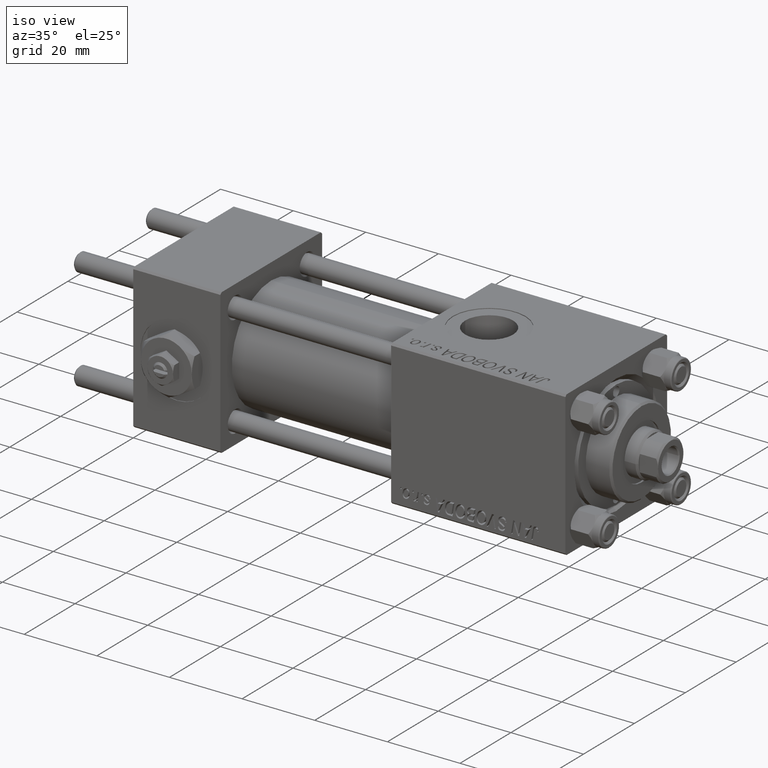
[diagram: clean part render]
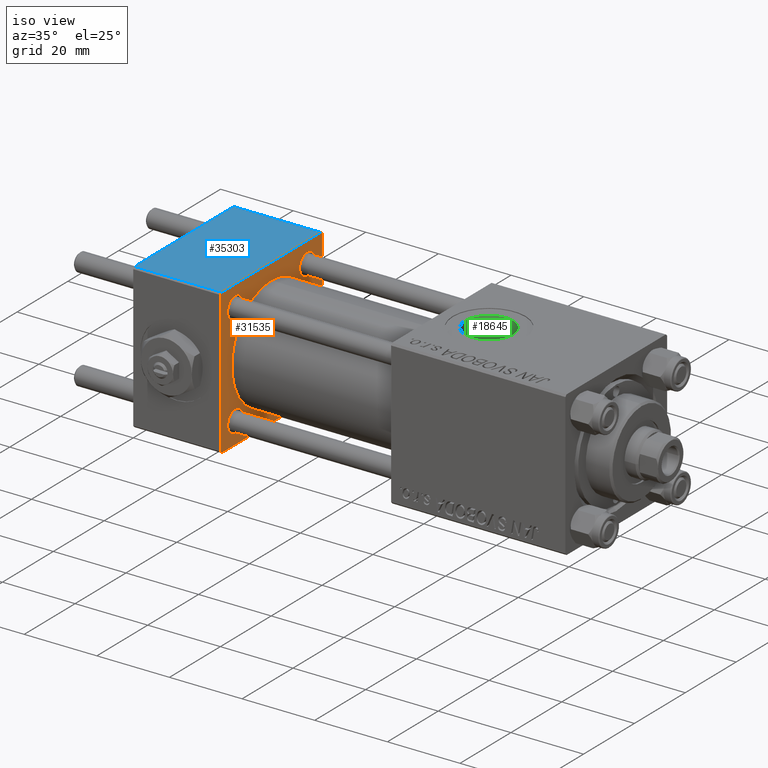
[diagram: same view with three faces highlighted in distinct colors, each labeled with its STEP entity id]
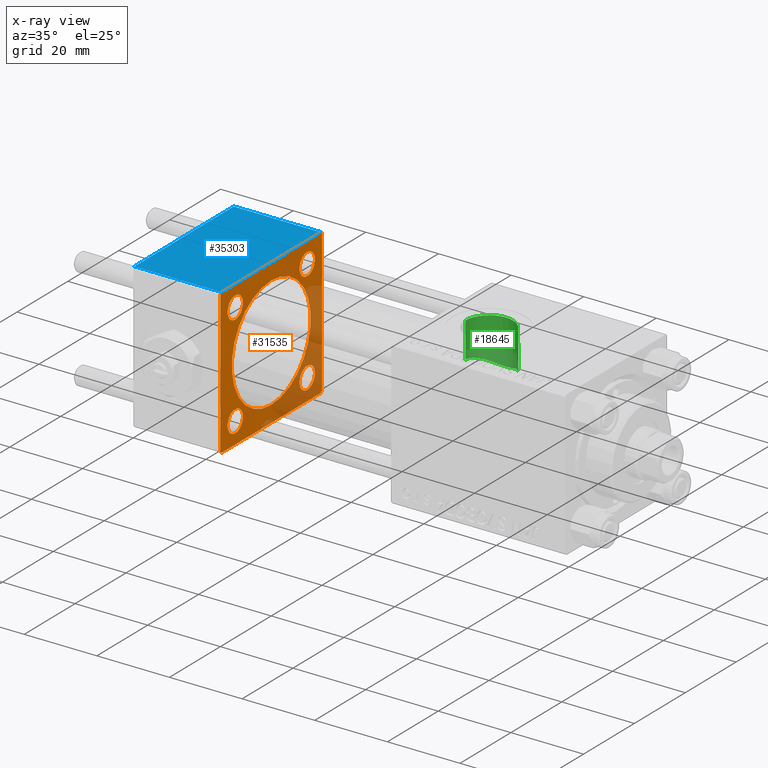
[diagram: x-ray of the same camera — body ghosted, the three highlighted faces saturated]
A machine part, iso view with three faces highlighted in distinct colors.
The next image is the same camera in x-ray (body ghosted, the three faces saturated) — at least one of them is partly hidden behind the body in this view.
Their STEP definitions:

[orange] entity #31535 — the highlighted planar face has unit normal (-1, 0, 0).
#672 = CIRCLE ( 'NONE', #29859, 2.999999999999976463 ) ;
#986 = CIRCLE ( 'NONE', #28476, 3.000000000000000888 ) ;
#1145 = ORIENTED_EDGE ( 'NONE', *, *, #37244, .F. ) ;
#1240 = DIRECTION ( 'NONE',  ( 0.000000000000000000, 0.000000000000000000, 1.000000000000000000 ) ) ;
#1499 = DIRECTION ( 'NONE',  ( -1.000000000000000000, -0.000000000000000000, -0.000000000000000000 ) ) ;
#1613 = CIRCLE ( 'NONE', #11568, 2.999999999999976463 ) ;
#1889 = DIRECTION ( 'NONE',  ( 0.000000000000000000, 0.000000000000000000, 1.000000000000000000 ) ) ;
#2499 = EDGE_CURVE ( 'NONE', #28625, #44655, #41868, .T. ) ;
#2757 = VERTEX_POINT ( 'NONE', #26898 ) ;
#3239 = FACE_BOUND ( 'NONE', #40485, .T. ) ;
#4129 = CARTESIAN_POINT ( 'NONE',  ( 24.00000000000000000, 14.14999999999999858, 11.15000000000002700 ) ) ;
#4434 = VERTEX_POINT ( 'NONE', #36444 ) ;
#4473 = CIRCLE ( 'NONE', #11127, 3.000000000000000888 ) ;
#4650 = CARTESIAN_POINT ( 'NONE',  ( 24.00000000000000000, 1.898202538678397557E-15, -15.50000000000000000 ) ) ;
#4819 = ORIENTED_EDGE ( 'NONE', *, *, #18932, .F. ) ;
#4896 = DIRECTION ( 'NONE',  ( 1.000000000000000000, 0.000000000000000000, 0.000000000000000000 ) ) ;
#4949 = EDGE_LOOP ( 'NONE', ( #46736, #4819 ) ) ;
#5687 = CARTESIAN_POINT ( 'NONE',  ( 24.00000000000000000, 14.14999999999999858, 14.15000000000000036 ) ) ;
#6001 = ORIENTED_EDGE ( 'NONE', *, *, #14616, .T. ) ;
#6092 = AXIS2_PLACEMENT_3D ( 'NONE', #45076, #4896, #9312 ) ;
#6113 = EDGE_LOOP ( 'NONE', ( #16189, #12818, #1145, #7943, #17245, #6001, #39445, #16332 ) ) ;
#6120 = DIRECTION ( 'NONE',  ( 0.000000000000000000, -1.000000000000000000, -2.602085213965210149E-16 ) ) ;
#6420 = CARTESIAN_POINT ( 'NONE',  ( 24.00000000000000000, -20.00000000000000355, 19.99999999999998934 ) ) ;
#6556 = DIRECTION ( 'NONE',  ( -1.000000000000000000, -0.000000000000000000, -0.000000000000000000 ) ) ;
#6845 = VERTEX_POINT ( 'NONE', #10902 ) ;
#7062 = DIRECTION ( 'NONE',  ( 0.000000000000000000, 0.000000000000000000, 1.000000000000000000 ) ) ;
#7354 = DIRECTION ( 'NONE',  ( 0.000000000000000000, 0.000000000000000000, 1.000000000000000000 ) ) ;
#7375 = ORIENTED_EDGE ( 'NONE', *, *, #46269, .T. ) ;
#7552 = CARTESIAN_POINT ( 'NONE',  ( 24.00000000000000000, 19.50000000000000711, -20.00000000000000711 ) ) ;
#7943 = ORIENTED_EDGE ( 'NONE', *, *, #28056, .T. ) ;
#8090 = DIRECTION ( 'NONE',  ( -0.000000000000000000, 0.7071067811865524577, 0.7071067811865426878 ) ) ;
#8266 = CIRCLE ( 'NONE', #19913, 15.50000000000000000 ) ;
#8667 = EDGE_CURVE ( 'NONE', #43431, #51454, #43840, .T. ) ;
#8809 = EDGE_LOOP ( 'NONE', ( #28927, #7375 ) ) ;
#9155 = VERTEX_POINT ( 'NONE', #4129 ) ;
#9312 = DIRECTION ( 'NONE',  ( 0.000000000000000000, 0.000000000000000000, 1.000000000000000000 ) ) ;
#9799 = VECTOR ( 'NONE', #29638, 999.9999999999998863 ) ;
#9868 = CARTESIAN_POINT ( 'NONE',  ( 24.00000000000000000, 14.14999999999999858, -11.15000000000002700 ) ) ;
#10816 = VERTEX_POINT ( 'NONE', #48826 ) ;
#10902 = CARTESIAN_POINT ( 'NONE',  ( 24.00000000000000000, -14.14999999999999503, 17.15000000000000568 ) ) ;
#11067 = PLANE ( 'NONE',  #24097 ) ;
#11127 = AXIS2_PLACEMENT_3D ( 'NONE', #34952, #46959, #15607 ) ;
#11568 = AXIS2_PLACEMENT_3D ( 'NONE', #50421, #6556, #7062 ) ;
#11773 = CARTESIAN_POINT ( 'NONE',  ( 24.00000000000000000, 19.50000000000000000, 20.00000000000000000 ) ) ;
#12718 = EDGE_CURVE ( 'NONE', #32553, #33952, #31215, .T. ) ;
#12818 = ORIENTED_EDGE ( 'NONE', *, *, #8667, .T. ) ;
#13293 = VECTOR ( 'NONE', #22948, 1000.000000000000000 ) ;
#13815 = LINE ( 'NONE', #25549, #20119 ) ;
#14336 = DIRECTION ( 'NONE',  ( -0.000000000000000000, -0.7071067811865500152, -0.7071067811865451302 ) ) ;
#14616 = EDGE_CURVE ( 'NONE', #44655, #32553, #13815, .T. ) ;
#15273 = ORIENTED_EDGE ( 'NONE', *, *, #26008, .T. ) ;
#15482 = FACE_BOUND ( 'NONE', #24099, .T. ) ;
#15607 = DIRECTION ( 'NONE',  ( 0.000000000000000000, 0.000000000000000000, 1.000000000000000000 ) ) ;
#15659 = CARTESIAN_POINT ( 'NONE',  ( 24.00000000000000000, 20.00000000000000000, -19.50000000000002132 ) ) ;
#15667 = EDGE_CURVE ( 'NONE', #27656, #4434, #986, .T. ) ;
#15962 = CIRCLE ( 'NONE', #48476, 2.999999999999976463 ) ;
#16189 = ORIENTED_EDGE ( 'NONE', *, *, #48507, .F. ) ;
#16332 = ORIENTED_EDGE ( 'NONE', *, *, #33082, .T. ) ;
#16928 = EDGE_LOOP ( 'NONE', ( #32771, #46448 ) ) ;
#17245 = ORIENTED_EDGE ( 'NONE', *, *, #2499, .T. ) ;
#18398 = DIRECTION ( 'NONE',  ( 0.000000000000000000, 0.000000000000000000, -1.000000000000000000 ) ) ;
#18427 = CARTESIAN_POINT ( 'NONE',  ( 24.00000000000000000, -19.49999999999999289, 19.99999999999998934 ) ) ;
#18652 = CARTESIAN_POINT ( 'NONE',  ( 24.00000000000000000, 20.00000000000000000, 19.49999999999999289 ) ) ;
#18734 = VERTEX_POINT ( 'NONE', #4650 ) ;
#18932 = EDGE_CURVE ( 'NONE', #18734, #2757, #24441, .T. ) ;
#19219 = DIRECTION ( 'NONE',  ( -1.000000000000000000, -0.000000000000000000, -0.000000000000000000 ) ) ;
#19913 = AXIS2_PLACEMENT_3D ( 'NONE', #27951, #43855, #40713 ) ;
#20119 = VECTOR ( 'NONE', #14336, 1000.000000000000114 ) ;
#20837 = CARTESIAN_POINT ( 'NONE',  ( 24.00000000000000000, 20.00000000000000000, -20.00000000000000711 ) ) ;
#21095 = LINE ( 'NONE', #20837, #42871 ) ;
#21281 = LINE ( 'NONE', #41892, #9799 ) ;
#21424 = CIRCLE ( 'NONE', #44741, 3.000000000000000888 ) ;
#21962 = CARTESIAN_POINT ( 'NONE',  ( 24.00000000000000000, 20.00000000000000000, -19.50000000000002132 ) ) ;
#22948 = DIRECTION ( 'NONE',  ( 0.000000000000000000, 0.7071067811865401342, -0.7071067811865549002 ) ) ;
#23574 = CARTESIAN_POINT ( 'NONE',  ( 24.00000000000000000, 0.000000000000000000, 0.000000000000000000 ) ) ;
#24097 = AXIS2_PLACEMENT_3D ( 'NONE', #23574, #38742, #35583 ) ;
#24099 = EDGE_LOOP ( 'NONE', ( #15273, #24317 ) ) ;
#24162 = CARTESIAN_POINT ( 'NONE',  ( 24.00000000000000000, -14.14999999999999503, -14.15000000000000391 ) ) ;
#24317 = ORIENTED_EDGE ( 'NONE', *, *, #15667, .T. ) ;
#24441 = CIRCLE ( 'NONE', #6092, 15.50000000000000000 ) ;
#24814 = VECTOR ( 'NONE', #6120, 1000.000000000000000 ) ;
#25036 = VERTEX_POINT ( 'NONE', #18652 ) ;
#25076 = CARTESIAN_POINT ( 'NONE',  ( 24.00000000000000000, -19.50000000000000711, -20.00000000000000000 ) ) ;
#25354 = DIRECTION ( 'NONE',  ( -1.000000000000000000, -0.000000000000000000, -0.000000000000000000 ) ) ;
#25533 = CARTESIAN_POINT ( 'NONE',  ( 24.00000000000000000, -20.00000000000000000, -19.49999999999999645 ) ) ;
#25549 = CARTESIAN_POINT ( 'NONE',  ( 24.00000000000000000, -20.00000000000000355, 19.49999999999998224 ) ) ;
#26008 = EDGE_CURVE ( 'NONE', #4434, #27656, #21424, .T. ) ;
#26289 = DIRECTION ( 'NONE',  ( 0.000000000000000000, 0.000000000000000000, 1.000000000000000000 ) ) ;
#26664 = CIRCLE ( 'NONE', #44180, 2.999999999999976463 ) ;
#26898 = CARTESIAN_POINT ( 'NONE',  ( 24.00000000000000000, 0.000000000000000000, 15.50000000000000000 ) ) ;
#27656 = VERTEX_POINT ( 'NONE', #29717 ) ;
#27751 = FACE_BOUND ( 'NONE', #8809, .T. ) ;
#27951 = CARTESIAN_POINT ( 'NONE',  ( 24.00000000000000000, 0.000000000000000000, 0.000000000000000000 ) ) ;
#28056 = EDGE_CURVE ( 'NONE', #25036, #28625, #21281, .T. ) ;
#28476 = AXIS2_PLACEMENT_3D ( 'NONE', #46772, #38925, #50437 ) ;
#28625 = VERTEX_POINT ( 'NONE', #11773 ) ;
#28927 = ORIENTED_EDGE ( 'NONE', *, *, #40828, .T. ) ;
#29499 = EDGE_CURVE ( 'NONE', #32999, #9155, #672, .T. ) ;
#29531 = VERTEX_POINT ( 'NONE', #43879 ) ;
#29638 = DIRECTION ( 'NONE',  ( 0.000000000000000000, -0.7071067811865425767, 0.7071067811865525687 ) ) ;
#29706 = VERTEX_POINT ( 'NONE', #25076 ) ;
#29717 = CARTESIAN_POINT ( 'NONE',  ( 24.00000000000000000, -14.14999999999999503, -11.15000000000000391 ) ) ;
#29859 = AXIS2_PLACEMENT_3D ( 'NONE', #35039, #31130, #7354 ) ;
#31130 = DIRECTION ( 'NONE',  ( -1.000000000000000000, -0.000000000000000000, -0.000000000000000000 ) ) ;
#31215 = LINE ( 'NONE', #6420, #47554 ) ;
#31535 = ADVANCED_FACE ( 'NONE', ( #15482, #3239, #27751, #35078, #31681, #43669 ), #11067, .F. ) ;
#31554 = LINE ( 'NONE', #42786, #13293 ) ;
#31572 = VECTOR ( 'NONE', #8090, 1000.000000000000000 ) ;
#31681 = FACE_BOUND ( 'NONE', #4949, .T. ) ;
#32001 = EDGE_CURVE ( 'NONE', #2757, #18734, #8266, .T. ) ;
#32553 = VERTEX_POINT ( 'NONE', #48121 ) ;
#32771 = ORIENTED_EDGE ( 'NONE', *, *, #33309, .T. ) ;
#32999 = VERTEX_POINT ( 'NONE', #42024 ) ;
#33082 = EDGE_CURVE ( 'NONE', #33952, #29706, #31554, .T. ) ;
#33309 = EDGE_CURVE ( 'NONE', #9155, #32999, #26664, .T. ) ;
#33952 = VERTEX_POINT ( 'NONE', #25533 ) ;
#34007 = ORIENTED_EDGE ( 'NONE', *, *, #41327, .T. ) ;
#34808 = CARTESIAN_POINT ( 'NONE',  ( 24.00000000000000000, 20.00000000000000000, 20.00000000000000000 ) ) ;
#34913 = EDGE_CURVE ( 'NONE', #10816, #49365, #1613, .T. ) ;
#34952 = CARTESIAN_POINT ( 'NONE',  ( 24.00000000000000000, -14.14999999999999503, 14.15000000000000391 ) ) ;
#35039 = CARTESIAN_POINT ( 'NONE',  ( 24.00000000000000000, 14.14999999999999858, 14.15000000000000036 ) ) ;
#35078 = FACE_BOUND ( 'NONE', #16928, .T. ) ;
#35583 = DIRECTION ( 'NONE',  ( -0.000000000000000000, 0.000000000000000000, 1.000000000000000000 ) ) ;
#36444 = CARTESIAN_POINT ( 'NONE',  ( 24.00000000000000000, -14.14999999999999503, -17.15000000000000568 ) ) ;
#37244 = EDGE_CURVE ( 'NONE', #25036, #51454, #37980, .T. ) ;
#37980 = LINE ( 'NONE', #38751, #49189 ) ;
#38742 = DIRECTION ( 'NONE',  ( -1.000000000000000000, 0.000000000000000000, -0.000000000000000000 ) ) ;
#38751 = CARTESIAN_POINT ( 'NONE',  ( 24.00000000000000000, 20.00000000000000000, 20.00000000000000000 ) ) ;
#38925 = DIRECTION ( 'NONE',  ( -1.000000000000000000, -0.000000000000000000, -0.000000000000000000 ) ) ;
#39445 = ORIENTED_EDGE ( 'NONE', *, *, #12718, .T. ) ;
#39568 = DIRECTION ( 'NONE',  ( 0.000000000000000000, 0.000000000000000000, 1.000000000000000000 ) ) ;
#40485 = EDGE_LOOP ( 'NONE', ( #45386, #34007 ) ) ;
#40713 = DIRECTION ( 'NONE',  ( 0.000000000000000000, 0.000000000000000000, 1.000000000000000000 ) ) ;
#40828 = EDGE_CURVE ( 'NONE', #29531, #6845, #41834, .T. ) ;
#41327 = EDGE_CURVE ( 'NONE', #49365, #10816, #15962, .T. ) ;
#41834 = CIRCLE ( 'NONE', #47646, 3.000000000000000888 ) ;
#41868 = LINE ( 'NONE', #34808, #24814 ) ;
#41892 = CARTESIAN_POINT ( 'NONE',  ( 24.00000000000000000, 19.50000000000000000, 20.00000000000000000 ) ) ;
#42024 = CARTESIAN_POINT ( 'NONE',  ( 24.00000000000000000, 14.14999999999999858, 17.14999999999997726 ) ) ;
#42786 = CARTESIAN_POINT ( 'NONE',  ( 24.00000000000000000, -19.50000000000000711, -20.00000000000000000 ) ) ;
#42871 = VECTOR ( 'NONE', #49288, 1000.000000000000000 ) ;
#43431 = VERTEX_POINT ( 'NONE', #7552 ) ;
#43669 = FACE_OUTER_BOUND ( 'NONE', #6113, .T. ) ;
#43840 = LINE ( 'NONE', #15659, #31572 ) ;
#43855 = DIRECTION ( 'NONE',  ( 1.000000000000000000, 0.000000000000000000, 0.000000000000000000 ) ) ;
#43879 = CARTESIAN_POINT ( 'NONE',  ( 24.00000000000000000, -14.14999999999999503, 11.15000000000000391 ) ) ;
#44180 = AXIS2_PLACEMENT_3D ( 'NONE', #5687, #46141, #26289 ) ;
#44655 = VERTEX_POINT ( 'NONE', #18427 ) ;
#44741 = AXIS2_PLACEMENT_3D ( 'NONE', #24162, #19219, #39568 ) ;
#45076 = CARTESIAN_POINT ( 'NONE',  ( 24.00000000000000000, 0.000000000000000000, 0.000000000000000000 ) ) ;
#45386 = ORIENTED_EDGE ( 'NONE', *, *, #34913, .T. ) ;
#45855 = CARTESIAN_POINT ( 'NONE',  ( 24.00000000000000000, 14.14999999999999858, -14.15000000000000036 ) ) ;
#46141 = DIRECTION ( 'NONE',  ( -1.000000000000000000, -0.000000000000000000, -0.000000000000000000 ) ) ;
#46269 = EDGE_CURVE ( 'NONE', #6845, #29531, #4473, .T. ) ;
#46448 = ORIENTED_EDGE ( 'NONE', *, *, #29499, .T. ) ;
#46622 = DIRECTION ( 'NONE',  ( 0.000000000000000000, 8.673617379884036705E-17, -1.000000000000000000 ) ) ;
#46736 = ORIENTED_EDGE ( 'NONE', *, *, #32001, .F. ) ;
#46772 = CARTESIAN_POINT ( 'NONE',  ( 24.00000000000000000, -14.14999999999999503, -14.15000000000000391 ) ) ;
#46959 = DIRECTION ( 'NONE',  ( -1.000000000000000000, -0.000000000000000000, -0.000000000000000000 ) ) ;
#47554 = VECTOR ( 'NONE', #46622, 1000.000000000000000 ) ;
#47646 = AXIS2_PLACEMENT_3D ( 'NONE', #49125, #25354, #1889 ) ;
#48121 = CARTESIAN_POINT ( 'NONE',  ( 24.00000000000000000, -20.00000000000000355, 19.49999999999998224 ) ) ;
#48476 = AXIS2_PLACEMENT_3D ( 'NONE', #45855, #1499, #1240 ) ;
#48507 = EDGE_CURVE ( 'NONE', #43431, #29706, #21095, .T. ) ;
#48826 = CARTESIAN_POINT ( 'NONE',  ( 24.00000000000000000, 14.14999999999999858, -17.14999999999997726 ) ) ;
#49125 = CARTESIAN_POINT ( 'NONE',  ( 24.00000000000000000, -14.14999999999999503, 14.15000000000000391 ) ) ;
#49189 = VECTOR ( 'NONE', #18398, 1000.000000000000000 ) ;
#49288 = DIRECTION ( 'NONE',  ( 0.000000000000000000, -1.000000000000000000, 1.734723475976807094E-16 ) ) ;
#49365 = VERTEX_POINT ( 'NONE', #9868 ) ;
#50421 = CARTESIAN_POINT ( 'NONE',  ( 24.00000000000000000, 14.14999999999999858, -14.15000000000000036 ) ) ;
#50437 = DIRECTION ( 'NONE',  ( 0.000000000000000000, 0.000000000000000000, 1.000000000000000000 ) ) ;
#51454 = VERTEX_POINT ( 'NONE', #21962 ) ;

[blue] entity #35303 — the highlighted planar face has unit normal (0, 0, -1).
#1188 = VERTEX_POINT ( 'NONE', #27590 ) ;
#2167 = CARTESIAN_POINT ( 'NONE',  ( 0.000000000000000000, 20.00000000000000000, 20.00000000000000000 ) ) ;
#2499 = EDGE_CURVE ( 'NONE', #28625, #44655, #41868, .T. ) ;
#3768 = CARTESIAN_POINT ( 'NONE',  ( 0.000000000000000000, 19.50000000000000000, 20.00000000000000000 ) ) ;
#6120 = DIRECTION ( 'NONE',  ( 0.000000000000000000, -1.000000000000000000, -2.602085213965210149E-16 ) ) ;
#6498 = CARTESIAN_POINT ( 'NONE',  ( 0.000000000000000000, -19.49999999999999289, 19.99999999999998934 ) ) ;
#9084 = CARTESIAN_POINT ( 'NONE',  ( 24.00000000000000000, -19.49999999999999289, 19.99999999999998934 ) ) ;
#11773 = CARTESIAN_POINT ( 'NONE',  ( 24.00000000000000000, 19.50000000000000000, 20.00000000000000000 ) ) ;
#14068 = PLANE ( 'NONE',  #19951 ) ;
#18243 = DIRECTION ( 'NONE',  ( 0.000000000000000000, 2.602085213965210149E-16, -1.000000000000000000 ) ) ;
#18427 = CARTESIAN_POINT ( 'NONE',  ( 24.00000000000000000, -19.49999999999999289, 19.99999999999998934 ) ) ;
#18529 = ORIENTED_EDGE ( 'NONE', *, *, #24284, .T. ) ;
#19033 = VECTOR ( 'NONE', #19672, 1000.000000000000000 ) ;
#19672 = DIRECTION ( 'NONE',  ( -1.000000000000000000, 0.000000000000000000, 0.000000000000000000 ) ) ;
#19951 = AXIS2_PLACEMENT_3D ( 'NONE', #30007, #18243, #34179 ) ;
#21518 = EDGE_CURVE ( 'NONE', #1188, #36092, #49667, .T. ) ;
#22793 = EDGE_LOOP ( 'NONE', ( #44599, #18529, #30234, #33966 ) ) ;
#24284 = EDGE_CURVE ( 'NONE', #36092, #44655, #35996, .T. ) ;
#24814 = VECTOR ( 'NONE', #6120, 1000.000000000000000 ) ;
#27590 = CARTESIAN_POINT ( 'NONE',  ( 0.000000000000000000, 19.50000000000000000, 20.00000000000000000 ) ) ;
#28625 = VERTEX_POINT ( 'NONE', #11773 ) ;
#28719 = VECTOR ( 'NONE', #40929, 1000.000000000000000 ) ;
#29165 = EDGE_CURVE ( 'NONE', #28625, #1188, #38505, .T. ) ;
#30007 = CARTESIAN_POINT ( 'NONE',  ( 24.00000000000000000, 20.00000000000000000, 20.00000000000000000 ) ) ;
#30234 = ORIENTED_EDGE ( 'NONE', *, *, #2499, .F. ) ;
#33966 = ORIENTED_EDGE ( 'NONE', *, *, #29165, .T. ) ;
#34179 = DIRECTION ( 'NONE',  ( 0.000000000000000000, 1.000000000000000000, 2.602085213965210149E-16 ) ) ;
#34808 = CARTESIAN_POINT ( 'NONE',  ( 24.00000000000000000, 20.00000000000000000, 20.00000000000000000 ) ) ;
#35303 = ADVANCED_FACE ( 'NONE', ( #49838 ), #14068, .F. ) ;
#35996 = LINE ( 'NONE', #9084, #28719 ) ;
#36092 = VERTEX_POINT ( 'NONE', #6498 ) ;
#38505 = LINE ( 'NONE', #3768, #19033 ) ;
#40197 = VECTOR ( 'NONE', #46252, 1000.000000000000000 ) ;
#40929 = DIRECTION ( 'NONE',  ( 1.000000000000000000, 0.000000000000000000, 0.000000000000000000 ) ) ;
#41868 = LINE ( 'NONE', #34808, #24814 ) ;
#44599 = ORIENTED_EDGE ( 'NONE', *, *, #21518, .T. ) ;
#44655 = VERTEX_POINT ( 'NONE', #18427 ) ;
#46252 = DIRECTION ( 'NONE',  ( 0.000000000000000000, -1.000000000000000000, -2.602085213965210149E-16 ) ) ;
#49667 = LINE ( 'NONE', #2167, #40197 ) ;
#49838 = FACE_OUTER_BOUND ( 'NONE', #22793, .T. ) ;

[green] entity #18645 — the highlighted cylindrical surface (edge-blend (fillet) strip) has radius 6.58 mm, axis along (0, 0, -1).
#1388 = CARTESIAN_POINT ( 'NONE',  ( 90.03413885016287566, 2.653169395164088673, 9.648548488114606414 ) ) ;
#1658 = CARTESIAN_POINT ( 'NONE',  ( 82.63059524258974875, 6.448383834520002189, 7.643587924519930077 ) ) ;
#2173 = CARTESIAN_POINT ( 'NONE',  ( 88.75576429004979673, 4.563405353889045557, 8.902983152274705603 ) ) ;
#2427 = CARTESIAN_POINT ( 'NONE',  ( 79.29945075164202706, 4.620086428004238854, 8.874409408839014191 ) ) ;
#3869 = VERTEX_POINT ( 'NONE', #47878 ) ;
#5304 = CARTESIAN_POINT ( 'NONE',  ( 81.49663029925335422, 6.097981844535524942, 7.927249195842431817 ) ) ;
#5502 = EDGE_CURVE ( 'NONE', #18540, #45558, #10008, .T. ) ;
#6077 = CARTESIAN_POINT ( 'NONE',  ( 77.49462714227192350, 1.008229431408490306, 9.951015238921771200 ) ) ;
#6325 = CARTESIAN_POINT ( 'NONE',  ( 80.16598197494553801, 5.361182684196731607, 8.446034601453865420 ) ) ;
#6617 = ORIENTED_EDGE ( 'NONE', *, *, #29853, .F. ) ;
#9209 = CARTESIAN_POINT ( 'NONE',  ( 87.25879362717273580, 5.729011173613096197, 8.200005008996571476 ) ) ;
#9456 = CIRCLE ( 'NONE', #23636, 6.580000000000002736 ) ;
#9473 = CARTESIAN_POINT ( 'NONE',  ( 78.16952377845562694, 3.074422462291082958, 9.522197844734161976 ) ) ;
#9494 = CARTESIAN_POINT ( 'NONE',  ( 77.42000000000160753, -1.734723475976807094E-15, 42.80000000000000426 ) ) ;
#9988 = CARTESIAN_POINT ( 'NONE',  ( 89.67635654325880523, 3.350987301718959088, 9.428927821902775008 ) ) ;
#10008 = LINE ( 'NONE', #9494, #29920 ) ;
#12651 = CARTESIAN_POINT ( 'NONE',  ( 77.42000000000160753, 1.225496637846663454E-15, 9.999999999999998224 ) ) ;
#13382 = CARTESIAN_POINT ( 'NONE',  ( 86.19913985023997327, 6.213801701238716113, 7.837395548023343927 ) ) ;
#13646 = CARTESIAN_POINT ( 'NONE',  ( 79.57202415259673955, 4.882110597332318669, 8.731710965080228704 ) ) ;
#13896 = CARTESIAN_POINT ( 'NONE',  ( 90.30000000000001137, 1.899052395280422134, 9.818024241158690657 ) ) ;
#14417 = CARTESIAN_POINT ( 'NONE',  ( 78.80526461954180206, 4.043265572016103704, 9.147692279144623129 ) ) ;
#14925 = CARTESIAN_POINT ( 'NONE',  ( 90.58000000000161833, 0.6482402319151217007, 15.00000000000000000 ) ) ;
#15680 = CARTESIAN_POINT ( 'NONE',  ( 90.30000000000001137, 1.899052395280422134, 9.818024241158690657 ) ) ;
#17302 = CARTESIAN_POINT ( 'NONE',  ( 77.42000000000157911, 0.2033100982330299789, 10.00000000000000533 ) ) ;
#17436 = B_SPLINE_CURVE_WITH_KNOTS ( 'NONE', 3,
 ( #41310, #17302, #41573, #37139, #6077, #49155, #50187, #21472, #25381, #33240, #9473, #37404, #21992, #14417, #18332, #2427, #13646, #6325, #29317, #41828, #5304, #30098, #1658, #33759, #25903, #34268, #21223, #41052, #13382, #44971, #9209, #37923, #25120, #2173, #21732, #37662, #9988, #1388, #45232, #13896 ),
 .UNSPECIFIED., .F., .F.,
 ( 4, 2, 2, 2, 2, 2, 2, 2, 2, 2, 2, 2, 2, 2, 2, 2, 2, 2, 2, 4 ),
 ( 0.01932465968158540368, 0.01992623976257815177, 0.02052781984357089987, 0.02112939992456364796, 0.02173098000555639606, 0.02293414016754189225, 0.02353572024853465075, 0.02413730032952740925, 0.02534046049151290197, 0.02654362065349839470, 0.02774678081548388742, 0.02894994097746937667, 0.03015310113945487286, 0.03135626130144036905, 0.03255942146342585830, 0.03376258162541135449, 0.03496574178739684374, 0.03616890194938233993, 0.03737206211136782918, 0.03857522227335331844 ),
 .UNSPECIFIED. ) ;
#18288 = VERTEX_POINT ( 'NONE', #29805 ) ;
#18332 = CARTESIAN_POINT ( 'NONE',  ( 78.92452899478662687, 4.191895100648730832, 9.080368974036076679 ) ) ;
#18540 = VERTEX_POINT ( 'NONE', #37575 ) ;
#18645 = ADVANCED_FACE ( 'NONE', ( #42497 ), #46686, .F. ) ;
#18709 = DIRECTION ( 'NONE',  ( 1.000000000000000000, 0.000000000000000000, 0.000000000000000000 ) ) ;
#21223 = CARTESIAN_POINT ( 'NONE',  ( 85.04005595195440037, 6.509727955660051357, 7.591870904139617515 ) ) ;
#21472 = CARTESIAN_POINT ( 'NONE',  ( 77.72206397560513835, 1.980885511869858506, 9.803792647692874951 ) ) ;
#21732 = CARTESIAN_POINT ( 'NONE',  ( 89.01137633077190969, 4.281013922255382909, 9.043334261708915633 ) ) ;
#21751 = DIRECTION ( 'NONE',  ( 0.000000000000000000, 0.000000000000000000, -1.000000000000000000 ) ) ;
#21944 = DIRECTION ( 'NONE',  ( 0.000000000000000000, 0.000000000000000000, -1.000000000000000000 ) ) ;
#21992 = CARTESIAN_POINT ( 'NONE',  ( 78.57832010883639384, 3.733451394699830672, 9.278448749828111630 ) ) ;
#22736 = AXIS2_PLACEMENT_3D ( 'NONE', #30264, #30769, #22925 ) ;
#22925 = DIRECTION ( 'NONE',  ( -1.000000000000000000, 0.000000000000000000, 0.000000000000000000 ) ) ;
#23636 = AXIS2_PLACEMENT_3D ( 'NONE', #30456, #46361, #18709 ) ;
#24830 = VECTOR ( 'NONE', #21944, 1000.000000000000000 ) ;
#25120 = CARTESIAN_POINT ( 'NONE',  ( 88.19646942446794924, 5.082480376343814221, 8.617202020242446636 ) ) ;
#25381 = CARTESIAN_POINT ( 'NONE',  ( 77.78548192684372964, 2.171457386534927370, 9.763238620524358424 ) ) ;
#25903 = CARTESIAN_POINT ( 'NONE',  ( 83.83547327919588099, 6.590311166412116783, 7.521181861580480188 ) ) ;
#26362 = CARTESIAN_POINT ( 'NONE',  ( 90.30000000000001137, 1.899052395280422134, 42.80000000000000426 ) ) ;
#29317 = CARTESIAN_POINT ( 'NONE',  ( 80.48063172447416491, 5.572696846751423294, 8.306367771683779822 ) ) ;
#29805 = CARTESIAN_POINT ( 'NONE',  ( 90.58000000000161833, 1.836897620916020515E-15, 15.00000000000000000 ) ) ;
#29853 = EDGE_CURVE ( 'NONE', #3869, #46793, #49882, .T. ) ;
#29920 = VECTOR ( 'NONE', #21751, 1000.000000000000000 ) ;
#30098 = CARTESIAN_POINT ( 'NONE',  ( 82.24366288463322405, 6.353544079652605703, 7.723932937123460185 ) ) ;
#30264 = CARTESIAN_POINT ( 'NONE',  ( 84.00000000000162004, -1.734723475976807094E-15, 42.80000000000000426 ) ) ;
#30456 = CARTESIAN_POINT ( 'NONE',  ( 84.00000000000162004, -1.734723475976807094E-15, 19.80000000000000071 ) ) ;
#30769 = DIRECTION ( 'NONE',  ( 0.000000000000000000, 0.000000000000000000, -1.000000000000000000 ) ) ;
#32298 = LINE ( 'NONE', #48217, #35953 ) ;
#33214 = ORIENTED_EDGE ( 'NONE', *, *, #5502, .T. ) ;
#33240 = CARTESIAN_POINT ( 'NONE',  ( 77.99778063450611398, 2.725070813950337012, 9.629029610002154627 ) ) ;
#33759 = CARTESIAN_POINT ( 'NONE',  ( 83.42309077254368788, 6.566894182960086646, 7.542015064090679566 ) ) ;
#34268 = CARTESIAN_POINT ( 'NONE',  ( 84.64208553656969514, 6.561020993391605494, 7.546746410830169616 ) ) ;
#34520 = CARTESIAN_POINT ( 'NONE',  ( 90.48627106246557616, 1.281108574220380492, 14.95816952780117148 ) ) ;
#35290 = ORIENTED_EDGE ( 'NONE', *, *, #47986, .T. ) ;
#35953 = VECTOR ( 'NONE', #44291, 1000.000000000000000 ) ;
#37139 = CARTESIAN_POINT ( 'NONE',  ( 77.46686778346209223, 0.8095015862945702523, 9.969213526992634300 ) ) ;
#37404 = CARTESIAN_POINT ( 'NONE',  ( 78.47036046458772773, 3.571696826446925765, 9.342058825423540824 ) ) ;
#37575 = CARTESIAN_POINT ( 'NONE',  ( 77.42000000000160753, -1.734723475976807094E-15, 19.80000000000000071 ) ) ;
#37662 = CARTESIAN_POINT ( 'NONE',  ( 89.47113332388803997, 3.675278640240594807, 9.305982037814921171 ) ) ;
#37694 = ORIENTED_EDGE ( 'NONE', *, *, #47863, .T. ) ;
#37923 = CARTESIAN_POINT ( 'NONE',  ( 87.89770756635059001, 5.314995828700215696, 8.474223888702248075 ) ) ;
#38427 = CARTESIAN_POINT ( 'NONE',  ( 90.30000000000001137, 1.899052395280422134, 14.87930105885285492 ) ) ;
#39988 = ORIENTED_EDGE ( 'NONE', *, *, #40385, .F. ) ;
#40385 = EDGE_CURVE ( 'NONE', #40603, #18288, #32298, .T. ) ;
#40603 = VERTEX_POINT ( 'NONE', #46348 ) ;
#41052 = CARTESIAN_POINT ( 'NONE',  ( 85.82542148765949719, 6.334517411160158318, 7.738665973508126683 ) ) ;
#41310 = CARTESIAN_POINT ( 'NONE',  ( 77.42000000000160753, 1.225496637846663454E-15, 9.999999999999998224 ) ) ;
#41573 = CARTESIAN_POINT ( 'NONE',  ( 77.42954415386401479, 0.4077000747564925587, 9.993712614140441985 ) ) ;
#41828 = CARTESIAN_POINT ( 'NONE',  ( 81.14578869087019086, 5.940907422894976087, 8.047130836319954739 ) ) ;
#42115 = ORIENTED_EDGE ( 'NONE', *, *, #45203, .F. ) ;
#42497 = FACE_OUTER_BOUND ( 'NONE', #43240, .T. ) ;
#42590 = CARTESIAN_POINT ( 'NONE',  ( 90.58000000000161833, 1.836897620916020515E-15, 15.00000000000000000 ) ) ;
#43240 = EDGE_LOOP ( 'NONE', ( #39988, #42115, #33214, #37694, #6617, #35290 ) ) ;
#43584 = B_SPLINE_CURVE_WITH_KNOTS ( 'NONE', 3,
 ( #38427, #34520, #14925, #42590 ),
 .UNSPECIFIED., .F., .F.,
 ( 4, 4 ),
 ( 0.000000000000000000, 0.001923267627926032990 ),
 .UNSPECIFIED. ) ;
#44291 = DIRECTION ( 'NONE',  ( 0.000000000000000000, 0.000000000000000000, -1.000000000000000000 ) ) ;
#44971 = CARTESIAN_POINT ( 'NONE',  ( 86.91556528692474615, 5.911601028563445936, 8.067779981976508807 ) ) ;
#45203 = EDGE_CURVE ( 'NONE', #18540, #40603, #9456, .T. ) ;
#45232 = CARTESIAN_POINT ( 'NONE',  ( 90.18394818542554958, 2.284047792793393317, 9.743556464968655462 ) ) ;
#45558 = VERTEX_POINT ( 'NONE', #12651 ) ;
#46348 = CARTESIAN_POINT ( 'NONE',  ( 90.58000000000161833, -9.289058821378484469E-16, 19.80000000000000071 ) ) ;
#46361 = DIRECTION ( 'NONE',  ( -0.000000000000000000, -0.000000000000000000, -1.000000000000000000 ) ) ;
#46686 = CYLINDRICAL_SURFACE ( 'NONE', #22736, 6.580000000000002736 ) ;
#46793 = VERTEX_POINT ( 'NONE', #15680 ) ;
#47863 = EDGE_CURVE ( 'NONE', #45558, #46793, #17436, .T. ) ;
#47878 = CARTESIAN_POINT ( 'NONE',  ( 90.30000000000001137, 1.899052395280422134, 14.87930105885285492 ) ) ;
#47986 = EDGE_CURVE ( 'NONE', #3869, #18288, #43584, .T. ) ;
#48217 = CARTESIAN_POINT ( 'NONE',  ( 90.58000000000161833, -9.289058821378484469E-16, 42.80000000000000426 ) ) ;
#49155 = CARTESIAN_POINT ( 'NONE',  ( 77.56787295357713674, 1.401479312404788846, 9.903286656888862893 ) ) ;
#49882 = LINE ( 'NONE', #26362, #24830 ) ;
#50187 = CARTESIAN_POINT ( 'NONE',  ( 77.61336014068592704, 1.596001079244919518, 9.873755022540402493 ) ) ;